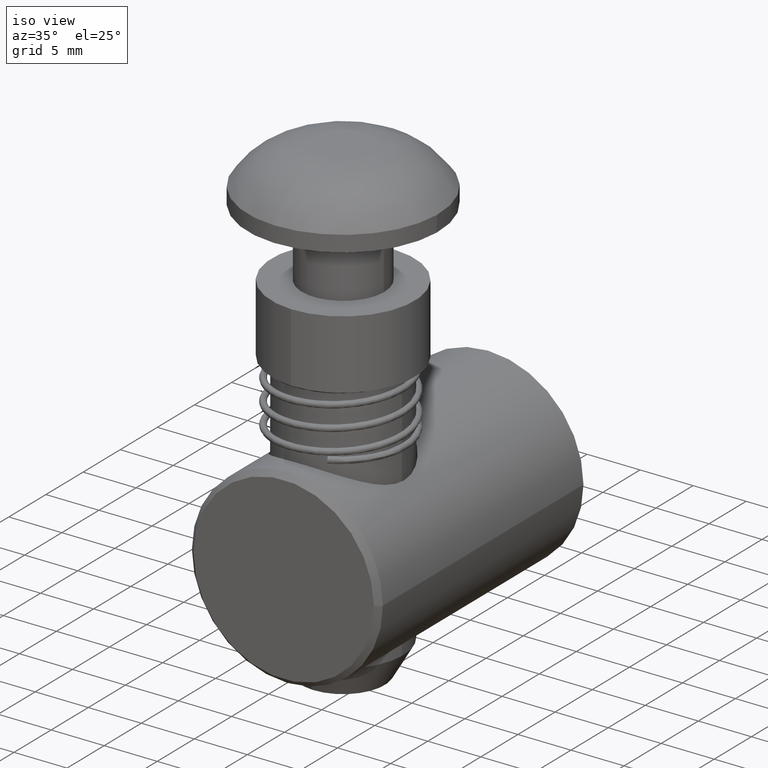
[diagram: clean part render]
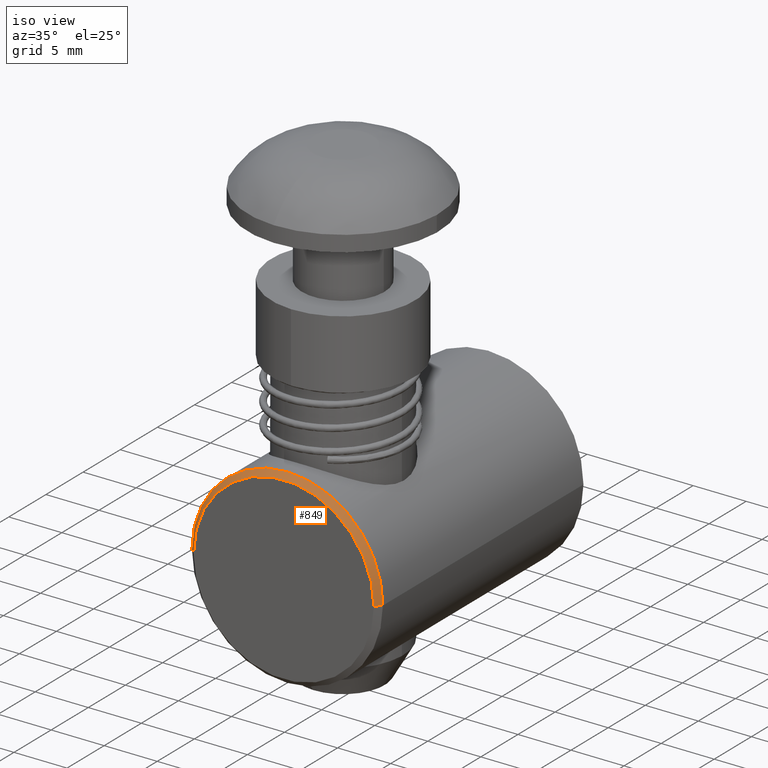
[diagram: same view with one face highlighted and labeled with its STEP entity id]
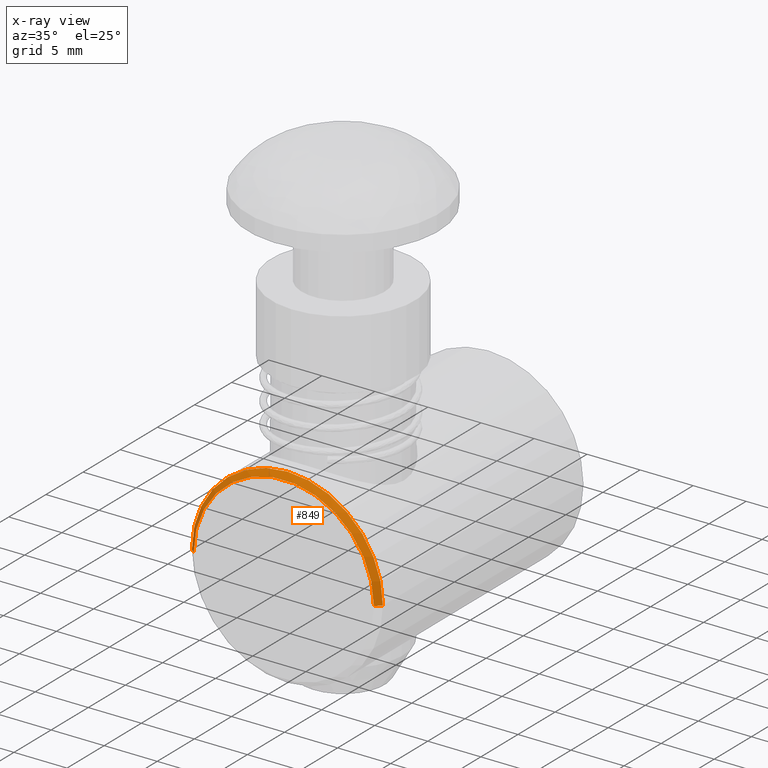
[diagram: x-ray of the same camera — body ghosted, the highlighted face saturated]
A machine part, iso view. The second image highlights one B-rep face of the part: STEP entity #849.
The next image is the same camera in x-ray: the body ghosted, the highlighted face saturated — about 0% of this face is hidden behind the body in this view.
In plain terms, the highlighted conical surface has half-angle 45 deg.
Its self-contained STEP definition (entity closure, byte-faithful):
#73 = VERTEX_POINT ( 'NONE', #210 ) ;
#75 = VERTEX_POINT ( 'NONE', #214 ) ;
#210 = CARTESIAN_POINT ( 'NONE',  ( 8.500000000000000000, 1.071565949253933900E-015, 0.0000000000000000000 ) ) ;
#214 = CARTESIAN_POINT ( 'NONE',  ( -9.000000000000001800, 0.0000000000000000000, -0.5000000000000004400 ) ) ;
#849 = ADVANCED_FACE ( 'NONE', ( #1983 ), #1984, .T. ) ;
#1983 = FACE_OUTER_BOUND ( 'NONE', #3098, .T. ) ;
#1984 = CONICAL_SURFACE ( 'NONE', #2851, 8.500000000000000000, 0.7853981633974487200 ) ;
#2103 = CARTESIAN_POINT ( 'NONE',  ( 0.0000000000000000000, 0.0000000000000000000, 0.0000000000000000000 ) ) ;
#2104 = DIRECTION ( 'NONE',  ( 0.0000000000000000000, 0.0000000000000000000, -1.000000000000000000 ) ) ;
#2105 = DIRECTION ( 'NONE',  ( -1.000000000000000000, 0.0000000000000000000, 0.0000000000000000000 ) ) ;
#2211 = LINE ( 'NONE', #2462, #2212 ) ;
#2212 = VECTOR ( 'NONE', #2463, 999.9999999999998900 ) ;
#2214 = CIRCLE ( 'NONE', #2874, 8.500000000000000000 ) ;
#2223 = CIRCLE ( 'NONE', #2877, 9.000000000000001800 ) ;
#2263 = LINE ( 'NONE', #2728, #2264 ) ;
#2264 = VECTOR ( 'NONE', #2729, 999.9999999999998900 ) ;
#2346 = CARTESIAN_POINT ( 'NONE',  ( -8.500000000000000000, 0.0000000000000000000, 0.0000000000000000000 ) ) ;
#2355 = CARTESIAN_POINT ( 'NONE',  ( 9.000000000000001800, 1.102182119232617900E-015, -0.5000000000000004400 ) ) ;
#2462 = CARTESIAN_POINT ( 'NONE',  ( 8.500000000000000000, 1.040949779275250100E-015, 0.0000000000000000000 ) ) ;
#2463 = DIRECTION ( 'NONE',  ( 0.7071067811865479100, 8.659560562354937800E-017, -0.7071067811865472400 ) ) ;
#2464 = CARTESIAN_POINT ( 'NONE',  ( 0.0000000000000000000, 0.0000000000000000000, 0.0000000000000000000 ) ) ;
#2465 = DIRECTION ( 'NONE',  ( -0.0000000000000000000, -0.0000000000000000000, 1.000000000000000000 ) ) ;
#2466 = DIRECTION ( 'NONE',  ( -1.000000000000000000, 0.0000000000000000000, 0.0000000000000000000 ) ) ;
#2479 = CARTESIAN_POINT ( 'NONE',  ( 0.0000000000000000000, 0.0000000000000000000, -0.5000000000000004400 ) ) ;
#2480 = DIRECTION ( 'NONE',  ( 0.0000000000000000000, 0.0000000000000000000, 1.000000000000000000 ) ) ;
#2481 = DIRECTION ( 'NONE',  ( 1.000000000000000000, 0.0000000000000000000, 4.818676322157796400E-017 ) ) ;
#2728 = CARTESIAN_POINT ( 'NONE',  ( -8.500000000000000000, 0.0000000000000000000, 0.0000000000000000000 ) ) ;
#2729 = DIRECTION ( 'NONE',  ( -0.7071067811865479100, 0.0000000000000000000, -0.7071067811865472400 ) ) ;
#2851 = AXIS2_PLACEMENT_3D ( 'NONE', #2103, #2104, #2105 ) ;
#2874 = AXIS2_PLACEMENT_3D ( 'NONE', #2464, #2465, #2466 ) ;
#2877 = AXIS2_PLACEMENT_3D ( 'NONE', #2479, #2480, #2481 ) ;
#2944 = ORIENTED_EDGE ( 'NONE', *, *, #3201, .F. ) ;
#2945 = ORIENTED_EDGE ( 'NONE', *, *, #3164, .T. ) ;
#2946 = ORIENTED_EDGE ( 'NONE', *, *, #3157, .T. ) ;
#2947 = ORIENTED_EDGE ( 'NONE', *, *, #3158, .F. ) ;
#3098 = EDGE_LOOP ( 'NONE', ( #2947, #2946, #2945, #2944 ) ) ;
#3117 = VERTEX_POINT ( 'NONE', #2346 ) ;
#3126 = VERTEX_POINT ( 'NONE', #2355 ) ;
#3157 = EDGE_CURVE ( 'NONE', #73, #3126, #2211, .T. ) ;
#3158 = EDGE_CURVE ( 'NONE', #73, #3117, #2214, .T. ) ;
#3164 = EDGE_CURVE ( 'NONE', #3126, #75, #2223, .T. ) ;
#3201 = EDGE_CURVE ( 'NONE', #3117, #75, #2263, .T. ) ;